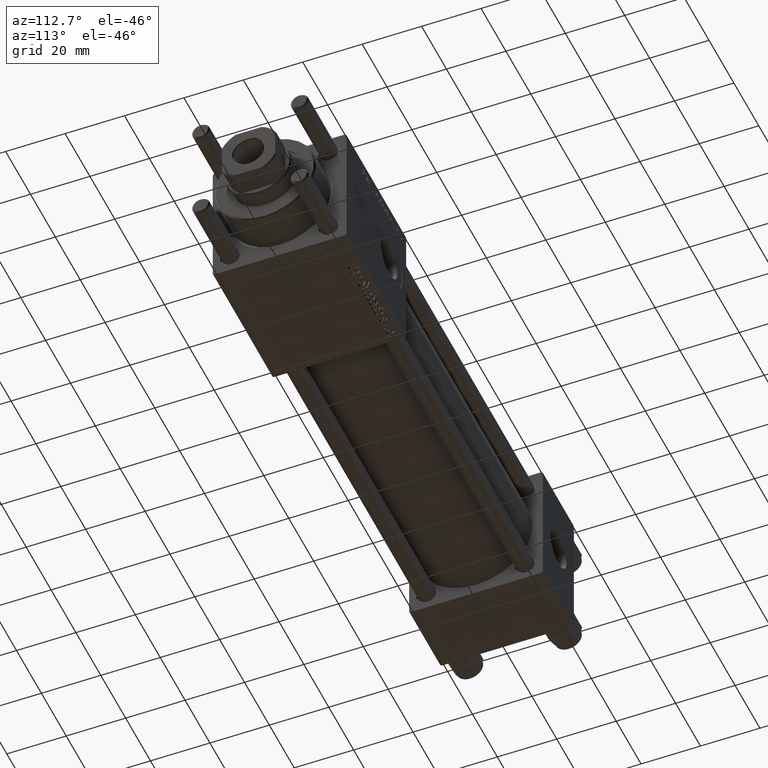
[diagram: clean part render]
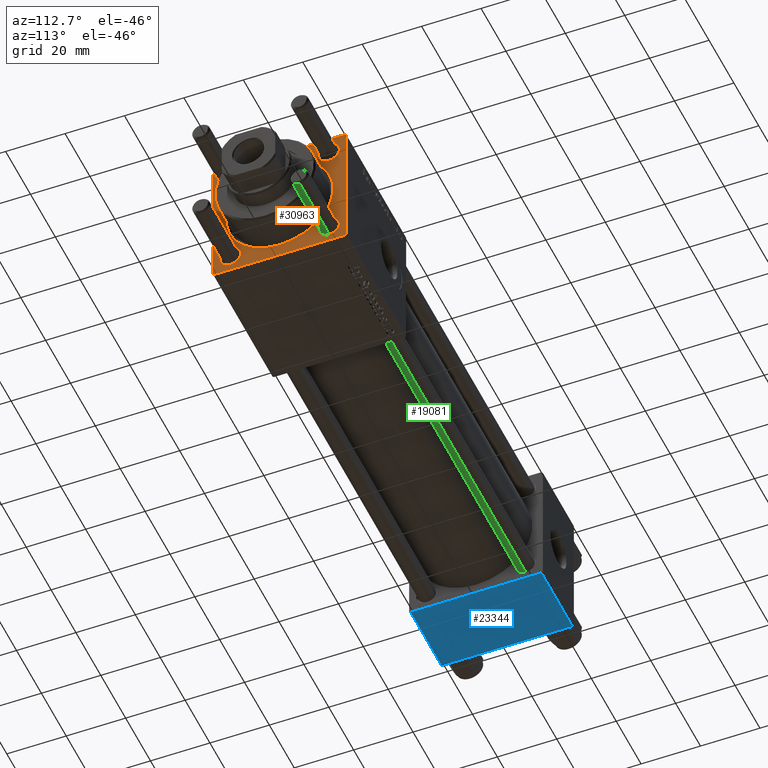
[diagram: same view with three faces highlighted in distinct colors, each labeled with its STEP entity id]
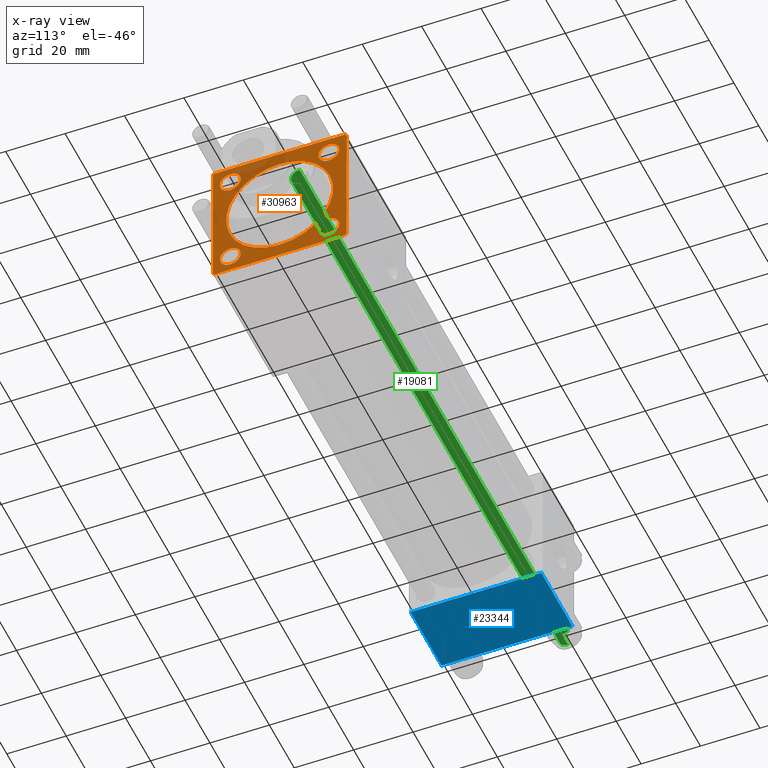
[diagram: x-ray of the same camera — body ghosted, the three highlighted faces saturated]
A machine part, auxiliary view with three faces highlighted in distinct colors.
The next image is the same camera in x-ray (body ghosted, the three faces saturated) — at least one of them is partly hidden behind the body in this view.
Their STEP definitions:

[orange] entity #30963 — the highlighted planar face has unit normal (-1, 0, 0).
#357 = VECTOR ( 'NONE', #40611, 1000.000000000000000 ) ;
#696 = ORIENTED_EDGE ( 'NONE', *, *, #36734, .T. ) ;
#1576 = ORIENTED_EDGE ( 'NONE', *, *, #38093, .T. ) ;
#1700 = EDGE_CURVE ( 'NONE', #31643, #12439, #16624, .T. ) ;
#2001 = CARTESIAN_POINT ( 'NONE',  ( 183.0000000000000000, 22.00000000000000355, 22.50000000000000355 ) ) ;
#2042 = ORIENTED_EDGE ( 'NONE', *, *, #23744, .T. ) ;
#2285 = CIRCLE ( 'NONE', #4167, 3.499999999999975131 ) ;
#2289 = DIRECTION ( 'NONE',  ( 0.000000000000000000, 0.000000000000000000, 1.000000000000000000 ) ) ;
#2888 = VERTEX_POINT ( 'NONE', #51927 ) ;
#3012 = EDGE_CURVE ( 'NONE', #13804, #26288, #9343, .T. ) ;
#3104 = CARTESIAN_POINT ( 'NONE',  ( 183.0000000000000000, -16.59999999999999076, 20.09999999999998721 ) ) ;
#3315 = DIRECTION ( 'NONE',  ( -0.000000000000000000, 0.000000000000000000, 1.000000000000000000 ) ) ;
#3653 = CARTESIAN_POINT ( 'NONE',  ( 183.0000000000000000, -21.99999999999998224, 22.49999999999999289 ) ) ;
#3786 = CARTESIAN_POINT ( 'NONE',  ( 183.0000000000000000, 22.50000000000000355, 22.00000000000000355 ) ) ;
#3846 = DIRECTION ( 'NONE',  ( 0.000000000000000000, 0.000000000000000000, 1.000000000000000000 ) ) ;
#4093 = AXIS2_PLACEMENT_3D ( 'NONE', #41105, #36812, #32510 ) ;
#4167 = AXIS2_PLACEMENT_3D ( 'NONE', #43567, #56195, #24907 ) ;
#4176 = CARTESIAN_POINT ( 'NONE',  ( 183.0000000000000000, 16.59999999999999787, -20.09999999999998010 ) ) ;
#4555 = DIRECTION ( 'NONE',  ( 0.000000000000000000, 0.000000000000000000, 1.000000000000000000 ) ) ;
#5139 = VERTEX_POINT ( 'NONE', #6247 ) ;
#5761 = CARTESIAN_POINT ( 'NONE',  ( 183.0000000000000000, -16.59999999999999076, 16.60000000000000853 ) ) ;
#6006 = EDGE_CURVE ( 'NONE', #31155, #8436, #25015, .T. ) ;
#6009 = CARTESIAN_POINT ( 'NONE',  ( 183.0000000000000000, 22.00000000000000355, -22.49999999999999645 ) ) ;
#6247 = CARTESIAN_POINT ( 'NONE',  ( 183.0000000000000000, -22.49999999999999645, 21.99999999999999289 ) ) ;
#6537 = VECTOR ( 'NONE', #13471, 1000.000000000000114 ) ;
#6576 = CARTESIAN_POINT ( 'NONE',  ( 183.0000000000000000, 22.50000000000000355, -22.49999999999999645 ) ) ;
#6945 = ORIENTED_EDGE ( 'NONE', *, *, #6006, .T. ) ;
#7088 = VERTEX_POINT ( 'NONE', #4176 ) ;
#8436 = VERTEX_POINT ( 'NONE', #3104 ) ;
#8483 = FACE_BOUND ( 'NONE', #26064, .T. ) ;
#8490 = CARTESIAN_POINT ( 'NONE',  ( 183.0000000000000000, -16.59999999999999076, -13.10000000000003162 ) ) ;
#8558 = AXIS2_PLACEMENT_3D ( 'NONE', #5761, #40788, #30801 ) ;
#8570 = LINE ( 'NONE', #17766, #6537 ) ;
#8599 = CARTESIAN_POINT ( 'NONE',  ( 183.0000000000000000, -16.59999999999999076, -20.09999999999998366 ) ) ;
#8887 = DIRECTION ( 'NONE',  ( 0.000000000000000000, 0.000000000000000000, -1.000000000000000000 ) ) ;
#8891 = CARTESIAN_POINT ( 'NONE',  ( 183.0000000000000000, 0.000000000000000000, -18.00000000000001421 ) ) ;
#9343 = CIRCLE ( 'NONE', #32234, 3.499999999999975131 ) ;
#9718 = CARTESIAN_POINT ( 'NONE',  ( 183.0000000000000000, 0.000000000000000000, 0.000000000000000000 ) ) ;
#10245 = AXIS2_PLACEMENT_3D ( 'NONE', #41632, #55421, #2289 ) ;
#10427 = ORIENTED_EDGE ( 'NONE', *, *, #1700, .T. ) ;
#10846 = ORIENTED_EDGE ( 'NONE', *, *, #25721, .F. ) ;
#11696 = VERTEX_POINT ( 'NONE', #8891 ) ;
#12122 = AXIS2_PLACEMENT_3D ( 'NONE', #47558, #29747, #3315 ) ;
#12255 = LINE ( 'NONE', #6576, #48792 ) ;
#12439 = VERTEX_POINT ( 'NONE', #8599 ) ;
#12520 = FACE_BOUND ( 'NONE', #48797, .T. ) ;
#12545 = VERTEX_POINT ( 'NONE', #39890 ) ;
#12700 = DIRECTION ( 'NONE',  ( 0.000000000000000000, -0.7071067811865474617, 0.7071067811865474617 ) ) ;
#13471 = DIRECTION ( 'NONE',  ( -0.000000000000000000, -0.7071067811865474617, -0.7071067811865474617 ) ) ;
#13553 = LINE ( 'NONE', #26744, #16021 ) ;
#13582 = VERTEX_POINT ( 'NONE', #3653 ) ;
#13657 = CARTESIAN_POINT ( 'NONE',  ( 183.0000000000000000, -21.99999999999996803, -22.50000000000000000 ) ) ;
#13804 = VERTEX_POINT ( 'NONE', #23735 ) ;
#13831 = AXIS2_PLACEMENT_3D ( 'NONE', #9718, #48776, #4555 ) ;
#14023 = EDGE_CURVE ( 'NONE', #2888, #7088, #45308, .T. ) ;
#14812 = ORIENTED_EDGE ( 'NONE', *, *, #3012, .T. ) ;
#16021 = VECTOR ( 'NONE', #43388, 1000.000000000000114 ) ;
#16406 = ORIENTED_EDGE ( 'NONE', *, *, #48338, .T. ) ;
#16624 = CIRCLE ( 'NONE', #10245, 3.499999999999975131 ) ;
#17162 = ORIENTED_EDGE ( 'NONE', *, *, #20824, .T. ) ;
#17391 = FACE_OUTER_BOUND ( 'NONE', #28628, .T. ) ;
#17766 = CARTESIAN_POINT ( 'NONE',  ( 183.0000000000000000, -22.49999999999999645, 21.99999999999999289 ) ) ;
#17845 = EDGE_CURVE ( 'NONE', #12439, #31643, #2285, .T. ) ;
#18330 = EDGE_LOOP ( 'NONE', ( #34551, #21913 ) ) ;
#19590 = CIRCLE ( 'NONE', #52591, 3.499999999999975131 ) ;
#20511 = CARTESIAN_POINT ( 'NONE',  ( 183.0000000000000000, 16.59999999999999787, -16.60000000000000497 ) ) ;
#20824 = EDGE_CURVE ( 'NONE', #22243, #11696, #27543, .T. ) ;
#20918 = ORIENTED_EDGE ( 'NONE', *, *, #37836, .T. ) ;
#21722 = FACE_BOUND ( 'NONE', #28921, .T. ) ;
#21913 = ORIENTED_EDGE ( 'NONE', *, *, #14023, .T. ) ;
#22077 = ORIENTED_EDGE ( 'NONE', *, *, #27651, .T. ) ;
#22243 = VERTEX_POINT ( 'NONE', #47804 ) ;
#22508 = EDGE_CURVE ( 'NONE', #22565, #56053, #24481, .T. ) ;
#22565 = VERTEX_POINT ( 'NONE', #3786 ) ;
#23629 = VERTEX_POINT ( 'NONE', #6009 ) ;
#23735 = CARTESIAN_POINT ( 'NONE',  ( 183.0000000000000000, 16.59999999999999787, 20.09999999999998010 ) ) ;
#23744 = EDGE_CURVE ( 'NONE', #13582, #5139, #8570, .T. ) ;
#23838 = DIRECTION ( 'NONE',  ( 0.000000000000000000, -1.000000000000000000, -7.709882115452476934E-17 ) ) ;
#24219 = DIRECTION ( 'NONE',  ( -1.000000000000000000, 0.000000000000000000, -0.000000000000000000 ) ) ;
#24481 = LINE ( 'NONE', #52041, #28513 ) ;
#24738 = EDGE_CURVE ( 'NONE', #23629, #42258, #12255, .T. ) ;
#24774 = DIRECTION ( 'NONE',  ( 0.000000000000000000, 0.000000000000000000, 1.000000000000000000 ) ) ;
#24812 = DIRECTION ( 'NONE',  ( -1.000000000000000000, 0.000000000000000000, -0.000000000000000000 ) ) ;
#24907 = DIRECTION ( 'NONE',  ( 0.000000000000000000, 0.000000000000000000, 1.000000000000000000 ) ) ;
#25015 = CIRCLE ( 'NONE', #8558, 3.499999999999975131 ) ;
#25060 = CARTESIAN_POINT ( 'NONE',  ( 183.0000000000000000, -16.59999999999999076, 16.60000000000000853 ) ) ;
#25441 = FACE_BOUND ( 'NONE', #40016, .T. ) ;
#25721 = EDGE_CURVE ( 'NONE', #22565, #12545, #34436, .T. ) ;
#25952 = AXIS2_PLACEMENT_3D ( 'NONE', #38216, #34775, #29319 ) ;
#26064 = EDGE_LOOP ( 'NONE', ( #51760, #14812 ) ) ;
#26288 = VERTEX_POINT ( 'NONE', #51044 ) ;
#26744 = CARTESIAN_POINT ( 'NONE',  ( 183.0000000000000000, 22.50000000000000355, -21.99999999999999645 ) ) ;
#27543 = CIRCLE ( 'NONE', #13831, 18.00000000000001421 ) ;
#27651 = EDGE_CURVE ( 'NONE', #8436, #31155, #36921, .T. ) ;
#27672 = CARTESIAN_POINT ( 'NONE',  ( 183.0000000000000000, 16.59999999999999787, -16.60000000000000497 ) ) ;
#27840 = AXIS2_PLACEMENT_3D ( 'NONE', #27672, #24219, #45188 ) ;
#28099 = VECTOR ( 'NONE', #48111, 1000.000000000000000 ) ;
#28341 = CARTESIAN_POINT ( 'NONE',  ( 183.0000000000000000, -21.99999999999995381, -22.50000000000000000 ) ) ;
#28513 = VECTOR ( 'NONE', #12700, 1000.000000000000114 ) ;
#28628 = EDGE_LOOP ( 'NONE', ( #35396, #16406, #31031, #1576, #10846, #48334, #696, #2042 ) ) ;
#28670 = AXIS2_PLACEMENT_3D ( 'NONE', #25060, #51194, #24774 ) ;
#28921 = EDGE_LOOP ( 'NONE', ( #6945, #22077 ) ) ;
#29319 = DIRECTION ( 'NONE',  ( 0.000000000000000000, 0.000000000000000000, 1.000000000000000000 ) ) ;
#29747 = DIRECTION ( 'NONE',  ( -1.000000000000000000, 0.000000000000000000, -0.000000000000000000 ) ) ;
#30030 = LINE ( 'NONE', #13657, #28099 ) ;
#30042 = PLANE ( 'NONE',  #12122 ) ;
#30801 = DIRECTION ( 'NONE',  ( 0.000000000000000000, 0.000000000000000000, 1.000000000000000000 ) ) ;
#30963 = ADVANCED_FACE ( 'NONE', ( #25441, #51854, #8483, #21722, #12520, #17391 ), #30042, .F. ) ;
#31031 = ORIENTED_EDGE ( 'NONE', *, *, #24738, .F. ) ;
#31155 = VERTEX_POINT ( 'NONE', #54384 ) ;
#31643 = VERTEX_POINT ( 'NONE', #8490 ) ;
#32234 = AXIS2_PLACEMENT_3D ( 'NONE', #49041, #40131, #39559 ) ;
#32510 = DIRECTION ( 'NONE',  ( 0.000000000000000000, 0.000000000000000000, 1.000000000000000000 ) ) ;
#33092 = EDGE_CURVE ( 'NONE', #26288, #13804, #36958, .T. ) ;
#33829 = CARTESIAN_POINT ( 'NONE',  ( 183.0000000000000000, -22.49999999999999645, 22.49999999999999289 ) ) ;
#34436 = LINE ( 'NONE', #47082, #40475 ) ;
#34551 = ORIENTED_EDGE ( 'NONE', *, *, #34794, .T. ) ;
#34775 = DIRECTION ( 'NONE',  ( -1.000000000000000000, 0.000000000000000000, -0.000000000000000000 ) ) ;
#34794 = EDGE_CURVE ( 'NONE', #7088, #2888, #19590, .T. ) ;
#35396 = ORIENTED_EDGE ( 'NONE', *, *, #40205, .T. ) ;
#36734 = EDGE_CURVE ( 'NONE', #56053, #13582, #50096, .T. ) ;
#36812 = DIRECTION ( 'NONE',  ( -1.000000000000000000, 0.000000000000000000, -0.000000000000000000 ) ) ;
#36921 = CIRCLE ( 'NONE', #28670, 3.499999999999975131 ) ;
#36958 = CIRCLE ( 'NONE', #25952, 3.499999999999975131 ) ;
#37836 = EDGE_CURVE ( 'NONE', #11696, #22243, #37961, .T. ) ;
#37961 = CIRCLE ( 'NONE', #4093, 18.00000000000001421 ) ;
#38046 = VECTOR ( 'NONE', #42734, 1000.000000000000000 ) ;
#38093 = EDGE_CURVE ( 'NONE', #23629, #12545, #13553, .T. ) ;
#38216 = CARTESIAN_POINT ( 'NONE',  ( 183.0000000000000000, 16.59999999999999787, 16.60000000000000497 ) ) ;
#38997 = LINE ( 'NONE', #33829, #38046 ) ;
#39559 = DIRECTION ( 'NONE',  ( 0.000000000000000000, 0.000000000000000000, 1.000000000000000000 ) ) ;
#39890 = CARTESIAN_POINT ( 'NONE',  ( 183.0000000000000000, 22.50000000000000355, -21.99999999999998224 ) ) ;
#40016 = EDGE_LOOP ( 'NONE', ( #51034, #10427 ) ) ;
#40131 = DIRECTION ( 'NONE',  ( -1.000000000000000000, 0.000000000000000000, -0.000000000000000000 ) ) ;
#40205 = EDGE_CURVE ( 'NONE', #5139, #46600, #38997, .T. ) ;
#40475 = VECTOR ( 'NONE', #8887, 1000.000000000000000 ) ;
#40611 = DIRECTION ( 'NONE',  ( 0.000000000000000000, -1.000000000000000000, -2.312964634635742957E-16 ) ) ;
#40788 = DIRECTION ( 'NONE',  ( -1.000000000000000000, 0.000000000000000000, -0.000000000000000000 ) ) ;
#41105 = CARTESIAN_POINT ( 'NONE',  ( 183.0000000000000000, 0.000000000000000000, 0.000000000000000000 ) ) ;
#41632 = CARTESIAN_POINT ( 'NONE',  ( 183.0000000000000000, -16.59999999999999076, -16.60000000000000853 ) ) ;
#42258 = VERTEX_POINT ( 'NONE', #28341 ) ;
#42734 = DIRECTION ( 'NONE',  ( 0.000000000000000000, 0.000000000000000000, -1.000000000000000000 ) ) ;
#43388 = DIRECTION ( 'NONE',  ( -0.000000000000000000, 0.7071067811865474617, 0.7071067811865474617 ) ) ;
#43567 = CARTESIAN_POINT ( 'NONE',  ( 183.0000000000000000, -16.59999999999999076, -16.60000000000000853 ) ) ;
#45188 = DIRECTION ( 'NONE',  ( 0.000000000000000000, 0.000000000000000000, 1.000000000000000000 ) ) ;
#45308 = CIRCLE ( 'NONE', #27840, 3.499999999999975131 ) ;
#46600 = VERTEX_POINT ( 'NONE', #47213 ) ;
#47082 = CARTESIAN_POINT ( 'NONE',  ( 183.0000000000000000, 22.50000000000000355, 22.50000000000000355 ) ) ;
#47213 = CARTESIAN_POINT ( 'NONE',  ( 183.0000000000000000, -22.49999999999999645, -21.99999999999995026 ) ) ;
#47558 = CARTESIAN_POINT ( 'NONE',  ( 183.0000000000000000, 0.000000000000000000, 0.000000000000000000 ) ) ;
#47804 = CARTESIAN_POINT ( 'NONE',  ( 183.0000000000000000, 2.204364238465237794E-15, 18.00000000000001421 ) ) ;
#48111 = DIRECTION ( 'NONE',  ( 0.000000000000000000, 0.7071067811865426878, -0.7071067811865524577 ) ) ;
#48334 = ORIENTED_EDGE ( 'NONE', *, *, #22508, .T. ) ;
#48338 = EDGE_CURVE ( 'NONE', #46600, #42258, #30030, .T. ) ;
#48776 = DIRECTION ( 'NONE',  ( -1.000000000000000000, 0.000000000000000000, -0.000000000000000000 ) ) ;
#48792 = VECTOR ( 'NONE', #23838, 1000.000000000000000 ) ;
#48797 = EDGE_LOOP ( 'NONE', ( #20918, #17162 ) ) ;
#49041 = CARTESIAN_POINT ( 'NONE',  ( 183.0000000000000000, 16.59999999999999787, 16.60000000000000497 ) ) ;
#50096 = LINE ( 'NONE', #50368, #357 ) ;
#50368 = CARTESIAN_POINT ( 'NONE',  ( 183.0000000000000000, 22.50000000000000355, 22.50000000000000355 ) ) ;
#51034 = ORIENTED_EDGE ( 'NONE', *, *, #17845, .T. ) ;
#51044 = CARTESIAN_POINT ( 'NONE',  ( 183.0000000000000000, 16.59999999999999787, 13.10000000000002807 ) ) ;
#51194 = DIRECTION ( 'NONE',  ( -1.000000000000000000, 0.000000000000000000, -0.000000000000000000 ) ) ;
#51760 = ORIENTED_EDGE ( 'NONE', *, *, #33092, .T. ) ;
#51854 = FACE_BOUND ( 'NONE', #18330, .T. ) ;
#51927 = CARTESIAN_POINT ( 'NONE',  ( 183.0000000000000000, 16.59999999999999787, -13.10000000000002807 ) ) ;
#52041 = CARTESIAN_POINT ( 'NONE',  ( 183.0000000000000000, 22.00000000000000355, 22.50000000000000355 ) ) ;
#52591 = AXIS2_PLACEMENT_3D ( 'NONE', #20511, #24812, #3846 ) ;
#54384 = CARTESIAN_POINT ( 'NONE',  ( 183.0000000000000000, -16.59999999999999076, 13.10000000000003162 ) ) ;
#55421 = DIRECTION ( 'NONE',  ( -1.000000000000000000, 0.000000000000000000, -0.000000000000000000 ) ) ;
#56053 = VERTEX_POINT ( 'NONE', #2001 ) ;
#56195 = DIRECTION ( 'NONE',  ( -1.000000000000000000, 0.000000000000000000, -0.000000000000000000 ) ) ;

[blue] entity #23344 — the highlighted planar face has unit normal (0, 0, -1).
#126 = CARTESIAN_POINT ( 'NONE',  ( 25.00000000000000000, 21.99999999999999289, -22.49999999999999645 ) ) ;
#3119 = VECTOR ( 'NONE', #12822, 1000.000000000000000 ) ;
#5586 = FACE_OUTER_BOUND ( 'NONE', #5682, .T. ) ;
#5682 = EDGE_LOOP ( 'NONE', ( #18808, #8627, #12347, #46774 ) ) ;
#5877 = VERTEX_POINT ( 'NONE', #35375 ) ;
#6232 = VERTEX_POINT ( 'NONE', #21554 ) ;
#7435 = AXIS2_PLACEMENT_3D ( 'NONE', #53837, #14775, #32283 ) ;
#8184 = DIRECTION ( 'NONE',  ( 1.000000000000000000, 0.000000000000000000, 0.000000000000000000 ) ) ;
#8627 = ORIENTED_EDGE ( 'NONE', *, *, #48335, .T. ) ;
#9753 = EDGE_CURVE ( 'NONE', #21107, #6232, #38357, .T. ) ;
#12247 = CARTESIAN_POINT ( 'NONE',  ( 0.000000000000000000, -21.99999999999998579, -22.50000000000000711 ) ) ;
#12347 = ORIENTED_EDGE ( 'NONE', *, *, #16145, .T. ) ;
#12822 = DIRECTION ( 'NONE',  ( -1.000000000000000000, 0.000000000000000000, 0.000000000000000000 ) ) ;
#14775 = DIRECTION ( 'NONE',  ( 0.000000000000000000, 2.312964634635742957E-16, -1.000000000000000000 ) ) ;
#16145 = EDGE_CURVE ( 'NONE', #55621, #21107, #16647, .T. ) ;
#16647 = LINE ( 'NONE', #20967, #27971 ) ;
#17413 = CARTESIAN_POINT ( 'NONE',  ( 25.00000000000000000, -21.99999999999997158, -22.50000000000000711 ) ) ;
#17544 = LINE ( 'NONE', #21874, #39962 ) ;
#18808 = ORIENTED_EDGE ( 'NONE', *, *, #41847, .F. ) ;
#20967 = CARTESIAN_POINT ( 'NONE',  ( 25.00000000000000000, 22.50000000000000000, -22.49999999999999645 ) ) ;
#21107 = VERTEX_POINT ( 'NONE', #17413 ) ;
#21554 = CARTESIAN_POINT ( 'NONE',  ( 0.000000000000000000, -21.99999999999997158, -22.50000000000000711 ) ) ;
#21874 = CARTESIAN_POINT ( 'NONE',  ( 0.000000000000000000, 22.50000000000000000, -22.49999999999999645 ) ) ;
#23344 = ADVANCED_FACE ( 'NONE', ( #5586 ), #36321, .T. ) ;
#27971 = VECTOR ( 'NONE', #55979, 1000.000000000000000 ) ;
#32283 = DIRECTION ( 'NONE',  ( 0.000000000000000000, 1.000000000000000000, 2.312964634635742957E-16 ) ) ;
#35375 = CARTESIAN_POINT ( 'NONE',  ( 0.000000000000000000, 21.99999999999999289, -22.49999999999999645 ) ) ;
#35464 = LINE ( 'NONE', #126, #47345 ) ;
#36321 = PLANE ( 'NONE',  #7435 ) ;
#38357 = LINE ( 'NONE', #12247, #3119 ) ;
#39646 = DIRECTION ( 'NONE',  ( 0.000000000000000000, -1.000000000000000000, -2.312964634635742957E-16 ) ) ;
#39962 = VECTOR ( 'NONE', #39646, 1000.000000000000000 ) ;
#41847 = EDGE_CURVE ( 'NONE', #5877, #6232, #17544, .T. ) ;
#42624 = CARTESIAN_POINT ( 'NONE',  ( 25.00000000000000000, 21.99999999999999289, -22.49999999999999645 ) ) ;
#46774 = ORIENTED_EDGE ( 'NONE', *, *, #9753, .T. ) ;
#47345 = VECTOR ( 'NONE', #8184, 1000.000000000000000 ) ;
#48335 = EDGE_CURVE ( 'NONE', #5877, #55621, #35464, .T. ) ;
#53837 = CARTESIAN_POINT ( 'NONE',  ( 25.00000000000000000, 22.50000000000000000, -22.49999999999999645 ) ) ;
#55621 = VERTEX_POINT ( 'NONE', #42624 ) ;
#55979 = DIRECTION ( 'NONE',  ( 0.000000000000000000, -1.000000000000000000, -2.312964634635742957E-16 ) ) ;

[green] entity #19081 — the highlighted cylindrical surface (edge-blend (fillet) strip) has radius 3 mm, axis along (-1, -0, 0).
#922 = DIRECTION ( 'NONE',  ( -0.000000000000000000, -0.000000000000000000, 1.000000000000000000 ) ) ;
#2678 = VERTEX_POINT ( 'NONE', #38473 ) ;
#2914 = DIRECTION ( 'NONE',  ( -0.000000000000000000, -0.000000000000000000, -1.000000000000000000 ) ) ;
#4311 = AXIS2_PLACEMENT_3D ( 'NONE', #37141, #28244, #10173 ) ;
#5260 = CARTESIAN_POINT ( 'NONE',  ( 0.000000000000000000, 0.000000000000000000, 0.5000000000000559552 ) ) ;
#6081 = AXIS2_PLACEMENT_3D ( 'NONE', #40194, #31590, #13531 ) ;
#6640 = VERTEX_POINT ( 'NONE', #9608 ) ;
#7231 = CARTESIAN_POINT ( 'NONE',  ( -3.000000000000000444, 0.000000000000000000, 217.0000000000000000 ) ) ;
#9608 = CARTESIAN_POINT ( 'NONE',  ( -3.000000000000000444, 0.000000000000000000, 216.5000000000000000 ) ) ;
#9851 = DIRECTION ( 'NONE',  ( 1.000000000000000000, 0.000000000000000000, 0.000000000000000000 ) ) ;
#9885 = ORIENTED_EDGE ( 'NONE', *, *, #50796, .T. ) ;
#10173 = DIRECTION ( 'NONE',  ( -1.000000000000000000, 0.000000000000000000, 0.000000000000000000 ) ) ;
#13531 = DIRECTION ( 'NONE',  ( 1.000000000000000000, 0.000000000000000000, 0.000000000000000000 ) ) ;
#13929 = EDGE_LOOP ( 'NONE', ( #15118, #44578, #38467, #9885 ) ) ;
#15118 = ORIENTED_EDGE ( 'NONE', *, *, #30162, .F. ) ;
#15998 = VERTEX_POINT ( 'NONE', #20107 ) ;
#16668 = CARTESIAN_POINT ( 'NONE',  ( 3.000000000000000444, 3.673940397442060361E-16, 217.0000000000000000 ) ) ;
#19081 = ADVANCED_FACE ( 'NONE', ( #36855 ), #20980, .T. ) ;
#19985 = VERTEX_POINT ( 'NONE', #42180 ) ;
#20107 = CARTESIAN_POINT ( 'NONE',  ( 3.000000000000000444, 3.673940397442060361E-16, 216.5000000000000000 ) ) ;
#20980 = CYLINDRICAL_SURFACE ( 'NONE', #4311, 3.000000000000000444 ) ;
#26938 = EDGE_CURVE ( 'NONE', #6640, #19985, #48254, .T. ) ;
#28244 = DIRECTION ( 'NONE',  ( -0.000000000000000000, -0.000000000000000000, -1.000000000000000000 ) ) ;
#30162 = EDGE_CURVE ( 'NONE', #15998, #2678, #55999, .T. ) ;
#31590 = DIRECTION ( 'NONE',  ( 0.000000000000000000, 0.000000000000000000, -1.000000000000000000 ) ) ;
#31840 = AXIS2_PLACEMENT_3D ( 'NONE', #5260, #922, #9851 ) ;
#32693 = CIRCLE ( 'NONE', #6081, 3.000000000000000444 ) ;
#34584 = CIRCLE ( 'NONE', #31840, 3.000000000000000444 ) ;
#36855 = FACE_OUTER_BOUND ( 'NONE', #13929, .T. ) ;
#37141 = CARTESIAN_POINT ( 'NONE',  ( 0.000000000000000000, 0.000000000000000000, 217.0000000000000000 ) ) ;
#38467 = ORIENTED_EDGE ( 'NONE', *, *, #26938, .T. ) ;
#38473 = CARTESIAN_POINT ( 'NONE',  ( 3.000000000000000444, 3.673940397442060361E-16, 0.5000000000000559552 ) ) ;
#40194 = CARTESIAN_POINT ( 'NONE',  ( 0.000000000000000000, 0.000000000000000000, 216.5000000000000000 ) ) ;
#40514 = VECTOR ( 'NONE', #47692, 1000.000000000000000 ) ;
#42180 = CARTESIAN_POINT ( 'NONE',  ( -3.000000000000000444, 0.000000000000000000, 0.5000000000000559552 ) ) ;
#44578 = ORIENTED_EDGE ( 'NONE', *, *, #44731, .T. ) ;
#44731 = EDGE_CURVE ( 'NONE', #15998, #6640, #32693, .T. ) ;
#47692 = DIRECTION ( 'NONE',  ( -0.000000000000000000, -0.000000000000000000, -1.000000000000000000 ) ) ;
#48254 = LINE ( 'NONE', #7231, #53405 ) ;
#50796 = EDGE_CURVE ( 'NONE', #19985, #2678, #34584, .T. ) ;
#53405 = VECTOR ( 'NONE', #2914, 1000.000000000000000 ) ;
#55999 = LINE ( 'NONE', #16668, #40514 ) ;